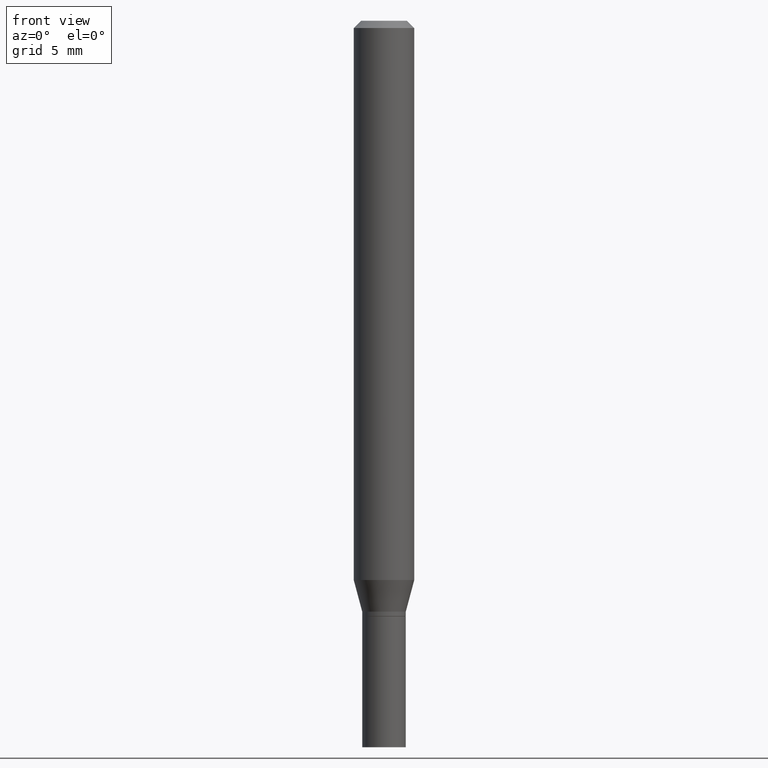
[diagram: clean part render]
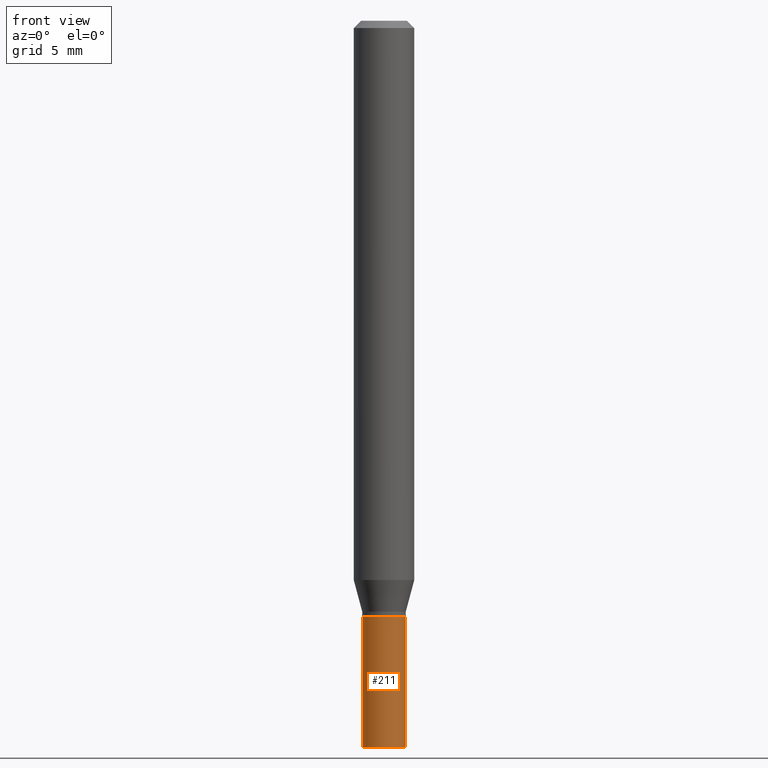
[diagram: same view with one face highlighted and labeled with its STEP entity id]
A machine part, front view. The second image highlights one B-rep face of the part: STEP entity #211.
In plain terms, the highlighted cylindrical surface (edge-blend (fillet) strip) has radius 1.143 mm, axis along (-0, 0, 1).
Its self-contained STEP definition (entity closure, byte-faithful):
#1 = CARTESIAN_POINT ( 'NONE',  ( 3.007926631607718216E-29, -4.294522046777069173E-15, -1.230000000000000204 ) ) ;
#2 = DIRECTION ( 'NONE',  ( -2.445468806185136597E-29, 3.491481338843145583E-15, 1.000000000000000000 ) ) ;
#7 = LINE ( 'NONE', #290, #72 ) ;
#11 = CIRCLE ( 'NONE', #284, 0.04499999999999999833 ) ;
#46 = VERTEX_POINT ( 'NONE', #206 ) ;
#60 = CYLINDRICAL_SURFACE ( 'NONE', #282, 0.04499999999999999833 ) ;
#61 = VECTOR ( 'NONE', #424, 39.37007874015748143 ) ;
#72 = VECTOR ( 'NONE', #186, 39.37007874015748143 ) ;
#86 = EDGE_CURVE ( 'NONE', #245, #444, #135, .T. ) ;
#105 = DIRECTION ( 'NONE',  ( -2.445468806185136597E-29, 3.491481338843145583E-15, 1.000000000000000000 ) ) ;
#134 = ORIENTED_EDGE ( 'NONE', *, *, #86, .F. ) ;
#135 = LINE ( 'NONE', #283, #61 ) ;
#137 = CIRCLE ( 'NONE', #198, 0.04499999999999999833 ) ;
#143 = DIRECTION ( 'NONE',  ( -2.445468806185136597E-29, 3.491481338843145583E-15, 1.000000000000000000 ) ) ;
#155 = ORIENTED_EDGE ( 'NONE', *, *, #247, .F. ) ;
#174 = CARTESIAN_POINT ( 'NONE',  ( 0.000000000000000000, 0.000000000000000000, 0.000000000000000000 ) ) ;
#186 = DIRECTION ( 'NONE',  ( -2.445468806185136877E-29, 3.491481338843145188E-15, 1.000000000000000000 ) ) ;
#187 = VERTEX_POINT ( 'NONE', #328 ) ;
#192 = CARTESIAN_POINT ( 'NONE',  ( -0.04499999999999999833, -4.446127796428848702E-15, -1.230000000000000204 ) ) ;
#198 = AXIS2_PLACEMENT_3D ( 'NONE', #1, #143, #304 ) ;
#206 = CARTESIAN_POINT ( 'NONE',  ( 0.04499999999999999833, -5.551455328760600652E-15, -1.500000000000000222 ) ) ;
#211 = ADVANCED_FACE ( 'NONE', ( #250 ), #60, .T. ) ;
#245 = VERTEX_POINT ( 'NONE', #288 ) ;
#247 = EDGE_CURVE ( 'NONE', #444, #187, #137, .T. ) ;
#250 = FACE_OUTER_BOUND ( 'NONE', #268, .T. ) ;
#253 = DIRECTION ( 'NONE',  ( 1.000000000000000000, -6.982962677686266711E-15, 4.876176775795935793E-29 ) ) ;
#259 = CARTESIAN_POINT ( 'NONE',  ( 3.668203209277704895E-29, -5.237222008264718177E-15, -1.500000000000000222 ) ) ;
#268 = EDGE_LOOP ( 'NONE', ( #134, #438, #405, #155 ) ) ;
#282 = AXIS2_PLACEMENT_3D ( 'NONE', #174, #105, #253 ) ;
#283 = CARTESIAN_POINT ( 'NONE',  ( -0.04499999999999999833, 3.197442310920450718E-16, -2.213520790614707560E-30 ) ) ;
#284 = AXIS2_PLACEMENT_3D ( 'NONE', #259, #2, #334 ) ;
#288 = CARTESIAN_POINT ( 'NONE',  ( -0.04499999999999999833, -4.446127796428848702E-15, -1.500000000000000222 ) ) ;
#290 = CARTESIAN_POINT ( 'NONE',  ( 0.04499999999999999833, -3.142333204958819823E-16, 2.194279549108170967E-30 ) ) ;
#296 = EDGE_CURVE ( 'NONE', #245, #46, #11, .T. ) ;
#304 = DIRECTION ( 'NONE',  ( 1.000000000000000000, -6.982962677686269077E-15, 0.000000000000000000 ) ) ;
#328 = CARTESIAN_POINT ( 'NONE',  ( 0.04499999999999999833, -4.608755367272951648E-15, -1.230000000000000204 ) ) ;
#334 = DIRECTION ( 'NONE',  ( 1.000000000000000000, -6.982962677686269077E-15, 0.000000000000000000 ) ) ;
#347 = EDGE_CURVE ( 'NONE', #46, #187, #7, .T. ) ;
#405 = ORIENTED_EDGE ( 'NONE', *, *, #347, .T. ) ;
#424 = DIRECTION ( 'NONE',  ( -2.445468806185136877E-29, 3.491481338843145188E-15, 1.000000000000000000 ) ) ;
#438 = ORIENTED_EDGE ( 'NONE', *, *, #296, .T. ) ;
#444 = VERTEX_POINT ( 'NONE', #192 ) ;